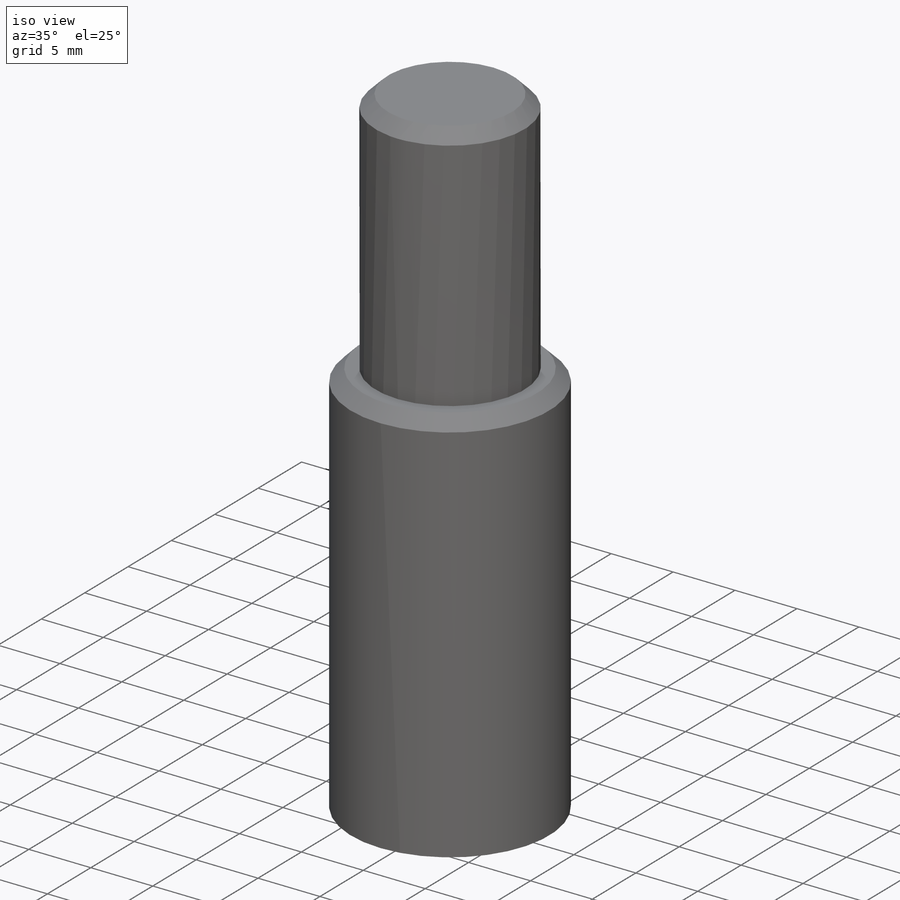
[diagram: iso view]
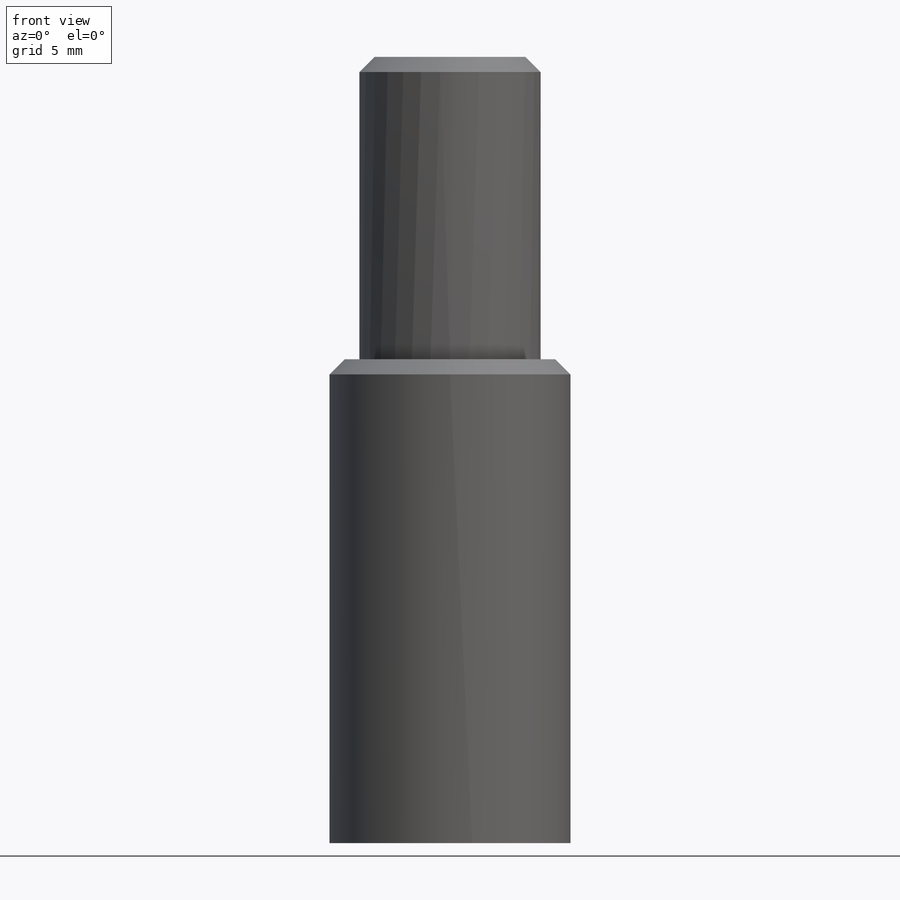
[diagram: front view]
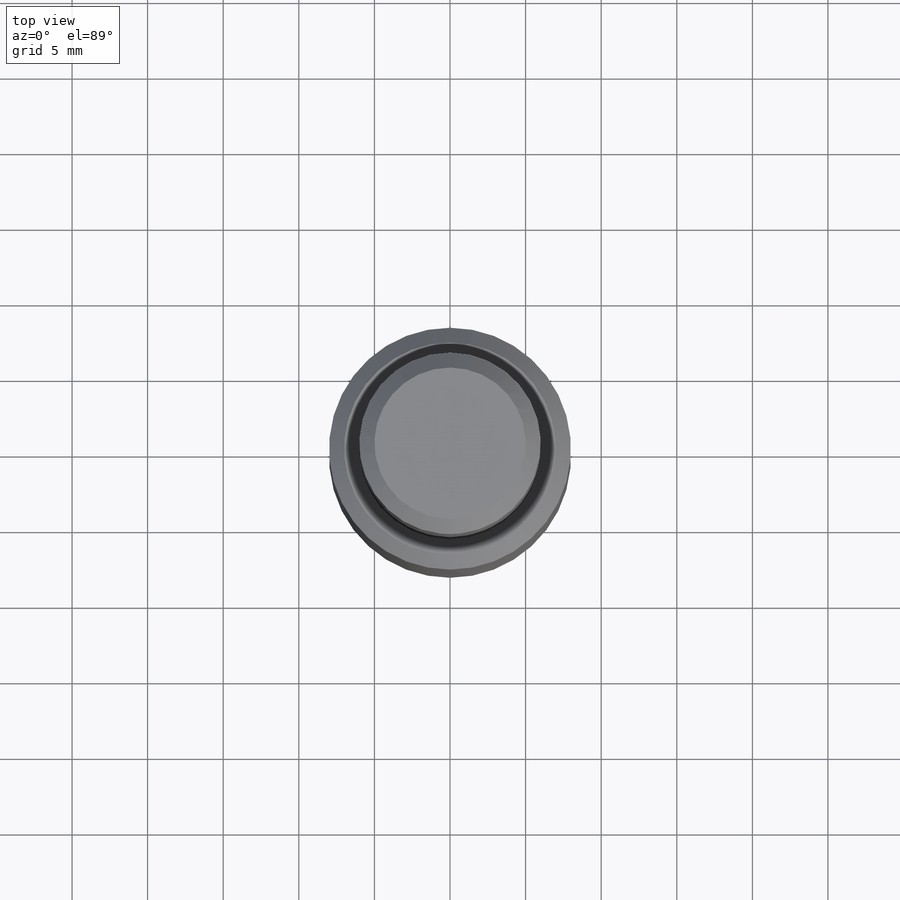
[diagram: top view]
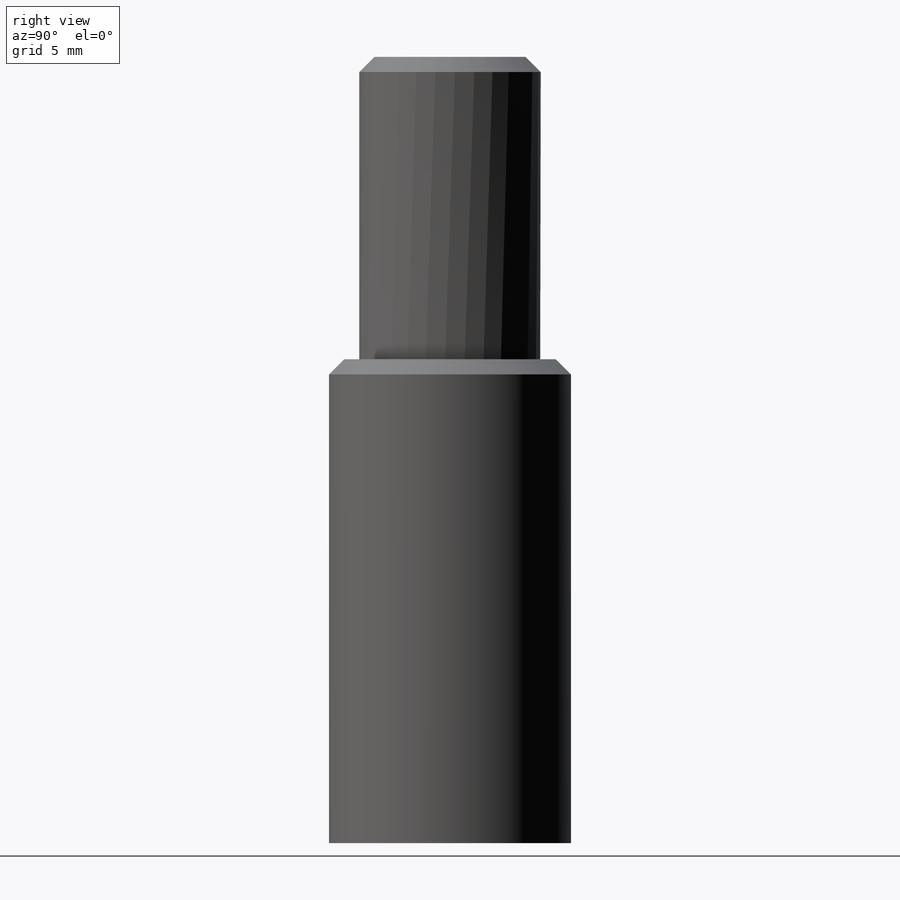
[diagram: right view]
SOLIDWORKS PART (.sldprt)
format: sldprt  version: not decoded by parser v0  size: 157,184 bytes
history: native  units: mm
features: plane x3, sketch x3, chamfer x2, material x1, revolve x1, hole x1, thread x1 (+9 scaffold rows collapsed)
feature tree (21):
  scaffold x9  (default folders/planes/origin — collapsed)
  material  "Material <nicht festgelegt>"
  plane  "Ebene vorne"
  plane  "Ebene oben"
  plane  "Ebene rechts"
  sketch  "Skizze1"  dims[D1=52.0mm D2=12.0mm D3=16.0mm D4=32.0mm]
  revolve  "Rotation1"  Angle=360deg
  hole  "M8 Gewindebohrung1"  Diameter=6.8mm Depth=15mm
  sketch  "Skizze3"
  sketch  "Skizze2"  dims[hole-wizard template sketch: 46 standard entries collapsed; hole parameters kept: c15.Bohrerdurchmesser=6.8mm c15.Bohrungstiefe=15.0mm c15.D3=~14.816244mm c15.Spitzenwinkel=118.0deg]
  thread  "Bohrungsgewinde1"  Diameter=10mm  [1 undecoded]
  chamfer  "Fase1"  Distance=1mm Angle=45deg
  chamfer  "Fase2"  Distance=1mm Angle=45deg
decode coverage: 7 of 8 modeling features carry decoded parameters
note: ~ marks probable driven/reference dimensions
note: 1 parameter value undecoded
note: suppression state not decoded; provenance and decode notes live in map.json
